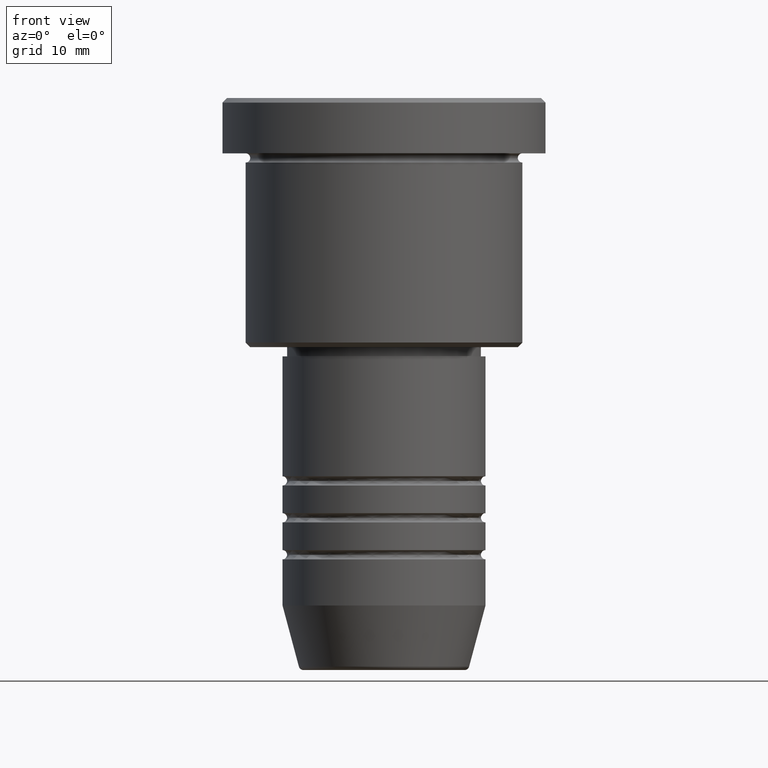
[diagram: clean part render]
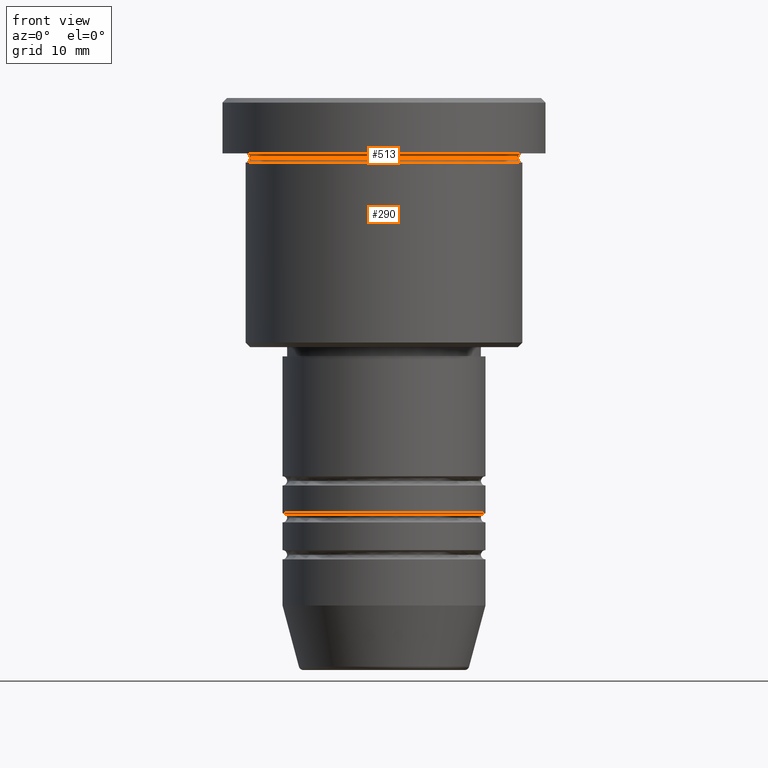
[diagram: same view with one multi-face feature highlighted, each face labeled with its STEP entity id]
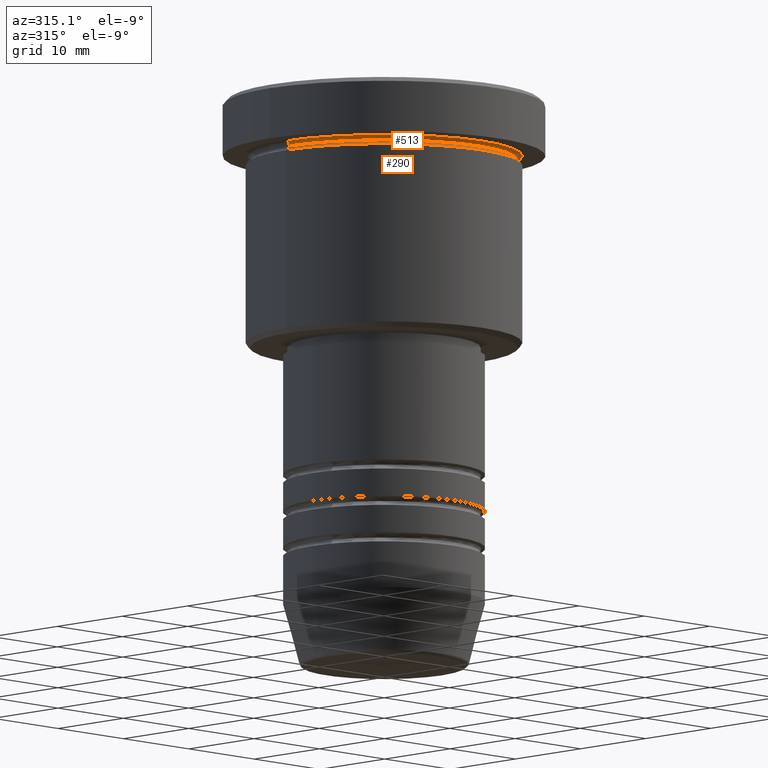
[diagram: same view with one multi-face feature highlighted, each face labeled with its STEP entity id]
A machine part, front view. The highlighted faces form ONE feature: a constant-radius fillet chain: 2 tangent blend faces with common blend radius 0.5 mm. The faces share edges in the B-rep.
A second angle (auxiliary view) of the same feature is appended — it is thin or edge-on in the first view.
Their STEP definitions:
[1] entity #290 (Torus):
#22 = DIRECTION ( 'NONE',  ( -0.000000000000000000, -0.000000000000000000, 1.000000000000000000 ) ) ;
#83 = CARTESIAN_POINT ( 'NONE',  ( -15.00000000000000000, 1.836970198721029589E-15, -6.999999999999995559 ) ) ;
#125 = CARTESIAN_POINT ( 'NONE',  ( 15.00000000000000000, 0.000000000000000000, -6.499999999999995559 ) ) ;
#166 = CARTESIAN_POINT ( 'NONE',  ( 15.00000000000000000, 0.000000000000000000, -6.999999999999995559 ) ) ;
#193 = EDGE_LOOP ( 'NONE', ( #756, #283, #356, #1087 ) ) ;
#224 = CARTESIAN_POINT ( 'NONE',  ( -15.00000000000000000, 1.836970198721029589E-15, -6.499999999999995559 ) ) ;
#247 = DIRECTION ( 'NONE',  ( 0.000000000000000000, 0.000000000000000000, -1.000000000000000000 ) ) ;
#283 = ORIENTED_EDGE ( 'NONE', *, *, #660, .T. ) ;
#284 = CARTESIAN_POINT ( 'NONE',  ( 0.000000000000000000, 0.000000000000000000, -6.499999999999995559 ) ) ;
#286 = CIRCLE ( 'NONE', #545, 15.00000000000000000 ) ;
#290 = ADVANCED_FACE ( 'NONE', ( #381 ), #949, .F. ) ;
#303 = DIRECTION ( 'NONE',  ( 1.000000000000000000, 0.000000000000000000, 0.000000000000000000 ) ) ;
#307 = EDGE_CURVE ( 'NONE', #542, #842, #286, .T. ) ;
#308 = AXIS2_PLACEMENT_3D ( 'NONE', #284, #1111, #376 ) ;
#356 = ORIENTED_EDGE ( 'NONE', *, *, #307, .T. ) ;
#365 = CIRCLE ( 'NONE', #721, 0.5000000000000004441 ) ;
#372 = EDGE_CURVE ( 'NONE', #548, #842, #1066, .T. ) ;
#376 = DIRECTION ( 'NONE',  ( 1.000000000000000000, 0.000000000000000000, 0.000000000000000000 ) ) ;
#381 = FACE_OUTER_BOUND ( 'NONE', #193, .T. ) ;
#459 = CARTESIAN_POINT ( 'NONE',  ( -14.49999999999999822, 1.806354028742345802E-15, -6.499999999999995559 ) ) ;
#542 = VERTEX_POINT ( 'NONE', #83 ) ;
#545 = AXIS2_PLACEMENT_3D ( 'NONE', #649, #22, #568 ) ;
#548 = VERTEX_POINT ( 'NONE', #895 ) ;
#568 = DIRECTION ( 'NONE',  ( 1.000000000000000000, 0.000000000000000000, 0.000000000000000000 ) ) ;
#649 = CARTESIAN_POINT ( 'NONE',  ( 0.000000000000000000, 0.000000000000000000, -6.999999999999995559 ) ) ;
#660 = EDGE_CURVE ( 'NONE', #1017, #542, #365, .T. ) ;
#721 = AXIS2_PLACEMENT_3D ( 'NONE', #224, #784, #1132 ) ;
#723 = CIRCLE ( 'NONE', #1099, 14.49999999999999822 ) ;
#756 = ORIENTED_EDGE ( 'NONE', *, *, #922, .F. ) ;
#767 = CARTESIAN_POINT ( 'NONE',  ( 0.000000000000000000, 0.000000000000000000, -6.499999999999995559 ) ) ;
#784 = DIRECTION ( 'NONE',  ( 1.224646799147353207E-16, 1.000000000000000000, 0.000000000000000000 ) ) ;
#842 = VERTEX_POINT ( 'NONE', #166 ) ;
#895 = CARTESIAN_POINT ( 'NONE',  ( 14.49999999999999822, 0.000000000000000000, -6.499999999999995559 ) ) ;
#922 = EDGE_CURVE ( 'NONE', #1017, #548, #723, .T. ) ;
#949 = TOROIDAL_SURFACE ( 'NONE', #308, 15.00000000000000000, 0.5000000000000000000 ) ;
#1017 = VERTEX_POINT ( 'NONE', #459 ) ;
#1043 = AXIS2_PLACEMENT_3D ( 'NONE', #125, #1149, #247 ) ;
#1066 = CIRCLE ( 'NONE', #1043, 0.5000000000000004441 ) ;
#1087 = ORIENTED_EDGE ( 'NONE', *, *, #372, .F. ) ;
#1099 = AXIS2_PLACEMENT_3D ( 'NONE', #767, #1125, #303 ) ;
#1111 = DIRECTION ( 'NONE',  ( -0.000000000000000000, -0.000000000000000000, 1.000000000000000000 ) ) ;
#1125 = DIRECTION ( 'NONE',  ( -0.000000000000000000, -0.000000000000000000, 1.000000000000000000 ) ) ;
#1132 = DIRECTION ( 'NONE',  ( -1.000000000000000000, 1.224646799147349509E-16, 0.000000000000000000 ) ) ;
#1149 = DIRECTION ( 'NONE',  ( 0.000000000000000000, -1.000000000000000000, 0.000000000000000000 ) ) ;
[2] entity #513 (Torus):
#2 = DIRECTION ( 'NONE',  ( 0.000000000000000000, 0.000000000000000000, -1.000000000000000000 ) ) ;
#85 = DIRECTION ( 'NONE',  ( -0.000000000000000000, -1.000000000000000000, -0.000000000000000000 ) ) ;
#107 = DIRECTION ( 'NONE',  ( -0.000000000000000000, -0.000000000000000000, 1.000000000000000000 ) ) ;
#118 = EDGE_LOOP ( 'NONE', ( #504, #561, #727, #911 ) ) ;
#184 = DIRECTION ( 'NONE',  ( -1.000000000000000000, 0.000000000000000000, 0.000000000000000000 ) ) ;
#192 = CARTESIAN_POINT ( 'NONE',  ( 0.000000000000000000, 0.000000000000000000, -5.999999999999995559 ) ) ;
#213 = VERTEX_POINT ( 'NONE', #260 ) ;
#223 = EDGE_CURVE ( 'NONE', #1017, #317, #369, .T. ) ;
#260 = CARTESIAN_POINT ( 'NONE',  ( 15.00000000000000000, 1.836970198721029589E-15, -5.999999999999994671 ) ) ;
#303 = DIRECTION ( 'NONE',  ( 1.000000000000000000, 0.000000000000000000, 0.000000000000000000 ) ) ;
#315 = DIRECTION ( 'NONE',  ( -1.000000000000000000, -1.224646799147349509E-16, 0.000000000000000000 ) ) ;
#317 = VERTEX_POINT ( 'NONE', #1012 ) ;
#348 = CARTESIAN_POINT ( 'NONE',  ( 0.000000000000000000, 0.000000000000000000, -6.499999999999995559 ) ) ;
#364 = FACE_OUTER_BOUND ( 'NONE', #118, .T. ) ;
#369 = CIRCLE ( 'NONE', #1027, 0.5000000000000004441 ) ;
#398 = DIRECTION ( 'NONE',  ( -1.224646799147353207E-16, 1.000000000000000000, 0.000000000000000000 ) ) ;
#459 = CARTESIAN_POINT ( 'NONE',  ( -14.49999999999999822, 1.806354028742345802E-15, -6.499999999999995559 ) ) ;
#504 = ORIENTED_EDGE ( 'NONE', *, *, #922, .T. ) ;
#513 = ADVANCED_FACE ( 'NONE', ( #364 ), #738, .F. ) ;
#531 = DIRECTION ( 'NONE',  ( 0.000000000000000000, 0.000000000000000000, -1.000000000000000000 ) ) ;
#548 = VERTEX_POINT ( 'NONE', #895 ) ;
#561 = ORIENTED_EDGE ( 'NONE', *, *, #605, .T. ) ;
#605 = EDGE_CURVE ( 'NONE', #548, #213, #703, .T. ) ;
#626 = AXIS2_PLACEMENT_3D ( 'NONE', #832, #398, #315 ) ;
#628 = DIRECTION ( 'NONE',  ( -1.000000000000000000, 0.000000000000000000, 0.000000000000000000 ) ) ;
#686 = AXIS2_PLACEMENT_3D ( 'NONE', #348, #531, #628 ) ;
#703 = CIRCLE ( 'NONE', #626, 0.5000000000000004441 ) ;
#723 = CIRCLE ( 'NONE', #1099, 14.49999999999999822 ) ;
#727 = ORIENTED_EDGE ( 'NONE', *, *, #998, .F. ) ;
#738 = TOROIDAL_SURFACE ( 'NONE', #686, 15.00000000000000000, 0.5000000000000000000 ) ;
#767 = CARTESIAN_POINT ( 'NONE',  ( 0.000000000000000000, 0.000000000000000000, -6.499999999999995559 ) ) ;
#781 = AXIS2_PLACEMENT_3D ( 'NONE', #192, #107, #184 ) ;
#832 = CARTESIAN_POINT ( 'NONE',  ( 15.00000000000000000, 1.836970198721029589E-15, -6.499999999999995559 ) ) ;
#895 = CARTESIAN_POINT ( 'NONE',  ( 14.49999999999999822, 0.000000000000000000, -6.499999999999995559 ) ) ;
#897 = CARTESIAN_POINT ( 'NONE',  ( -15.00000000000000000, 0.000000000000000000, -6.499999999999995559 ) ) ;
#911 = ORIENTED_EDGE ( 'NONE', *, *, #223, .F. ) ;
#922 = EDGE_CURVE ( 'NONE', #1017, #548, #723, .T. ) ;
#953 = CIRCLE ( 'NONE', #781, 15.00000000000000000 ) ;
#998 = EDGE_CURVE ( 'NONE', #317, #213, #953, .T. ) ;
#1012 = CARTESIAN_POINT ( 'NONE',  ( -15.00000000000000000, 0.000000000000000000, -5.999999999999994671 ) ) ;
#1017 = VERTEX_POINT ( 'NONE', #459 ) ;
#1027 = AXIS2_PLACEMENT_3D ( 'NONE', #897, #85, #2 ) ;
#1099 = AXIS2_PLACEMENT_3D ( 'NONE', #767, #1125, #303 ) ;
#1125 = DIRECTION ( 'NONE',  ( -0.000000000000000000, -0.000000000000000000, 1.000000000000000000 ) ) ;